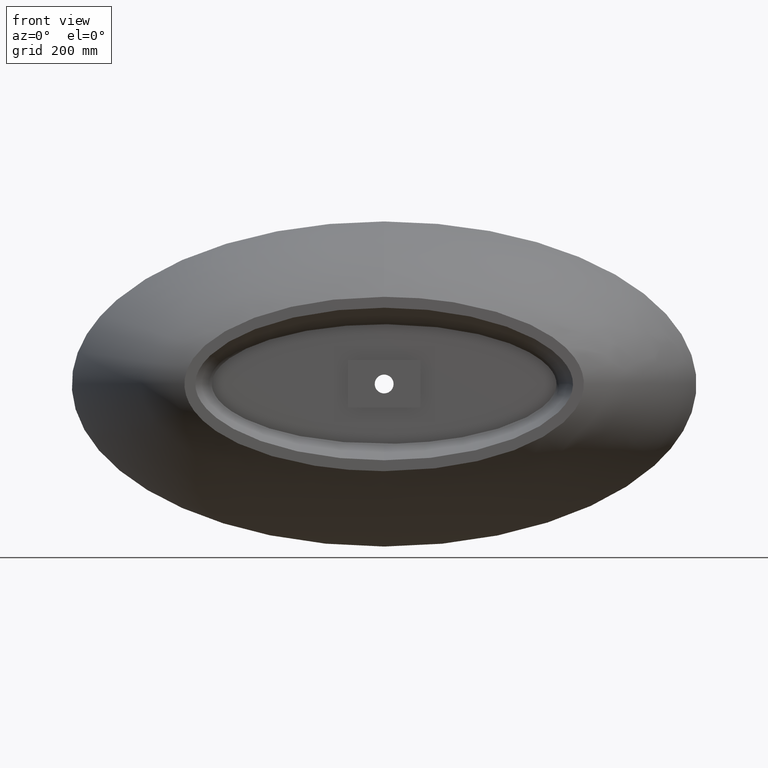
[diagram: clean part render]
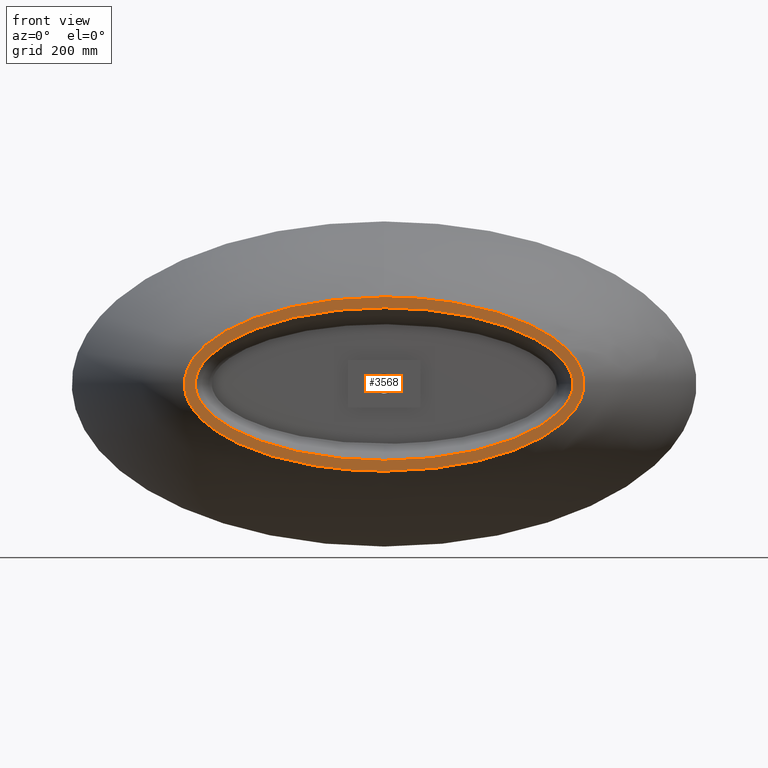
[diagram: same view with one face highlighted and labeled with its STEP entity id]
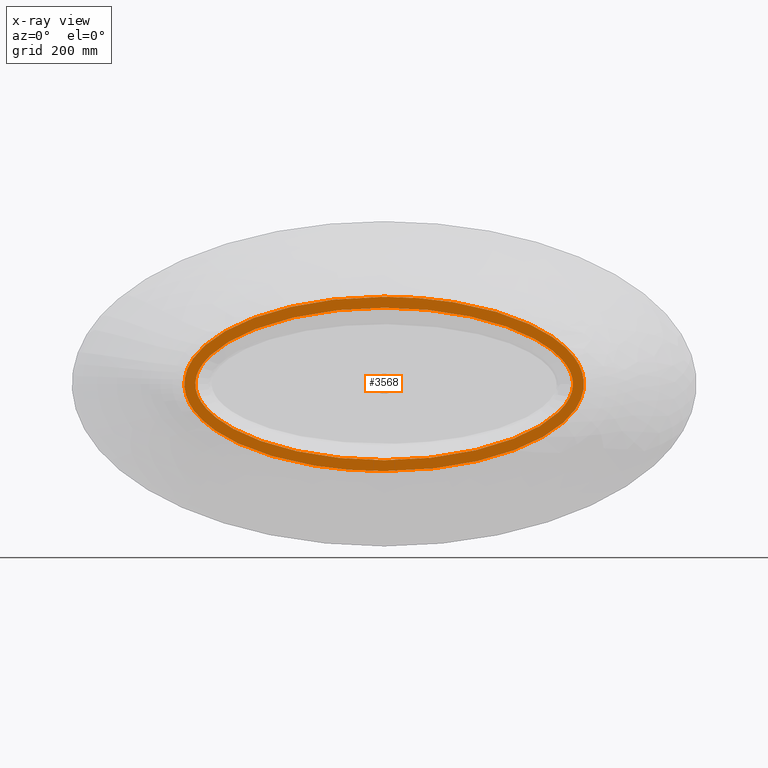
[diagram: x-ray of the same camera — body ghosted, the highlighted face saturated]
A machine part, front view. The second image highlights one B-rep face of the part: STEP entity #3568.
The next image is the same camera in x-ray: the body ghosted, the highlighted face saturated — about 0% of this face is hidden behind the body in this view.
In plain terms, the highlighted planar face has unit normal (-0, -1, 0).
Its self-contained STEP definition (entity closure, byte-faithful):
#64 = CARTESIAN_POINT ( 'NONE',  ( 458.2816326858994103, -549.9999999999995453, 133.3721714630975441 ) ) ;
#74 = CARTESIAN_POINT ( 'NONE',  ( 459.9408592957144037, -549.9999999999994316, 95.59083243352282011 ) ) ;
#284 = CARTESIAN_POINT ( 'NONE',  ( 509.8848025247946225, -549.9999999999969305, 39.74262314227175352 ) ) ;
#287 = B_SPLINE_CURVE_WITH_KNOTS ( 'NONE', 3,
 ( #13985, #3010, #10619, #793, #11759, #1934, #6317, #4162, #8534, #7673, #10969, #10897, #1003, #6528, #1081, #5460, #12047, #9836, #2217, #7599, #14197, #1150, #6602, #14125, #5529, #5389, #9908, #9766, #13116, #4306, #3224, #3293, #11975, #4448, #64, #8676, #6457, #13046, #2142, #4378, #8748, #10829, #10460, #8579 ),
 .UNSPECIFIED., .F., .F.,
 ( 4, 1, 1, 1, 1, 1, 1, 1, 1, 1, 1, 1, 1, 1, 1, 1, 1, 1, 1, 1, 1, 1, 1, 1, 1, 1, 1, 1, 1, 1, 1, 1, 1, 1, 1, 1, 1, 1, 1, 1, 1, 4 ),
 ( 0.5000000000000000000, 0.5156250000017437163, 0.5312500000016874280, 0.5468750000016312507, 0.5781250000015186741, 0.5937500000014624968, 0.6093750000014062085, 0.6250000000013500312, 0.6484375000012656542, 0.6562500000012374546, 0.6718750000011812773, 0.6875000000011249890, 0.6953125000010969003, 0.7031250000010687007, 0.7070312500010547119, 0.7148437500010265122, 0.7187500000010125234, 0.7265625000009843237, 0.7304687500009703349, 0.7343750000009562351, 0.7421875000009281464, 0.7500000000009101608, 0.7519531250008929524, 0.7539062500008859580, 0.7617187500008577583, 0.7656250000008437695, 0.7734375000008155698, 0.7812500000007874812, 0.7851562500007733814, 0.7968750000007311929, 0.8125000000006750156, 0.8203125000006468159, 0.8281250000006188383, 0.8437500000005624390, 0.8593750000005062617, 0.8750000000004500844, 0.9062500000003375078, 0.9218750000002813305, 0.9531250000001687539, 0.9687500000001125766, 0.9937500000000225597, 1.000000000000000000 ),
 .UNSPECIFIED. ) ;
#327 = AXIS2_PLACEMENT_3D ( 'NONE', #1748, #4046, #674 ) ;
#370 = CARTESIAN_POINT ( 'NONE',  ( -542.6870187016096452, -550.0000000000000000, 39.27530119178680934 ) ) ;
#585 = CARTESIAN_POINT ( 'NONE',  ( -43.42624776947792498, -549.9999999999995453, 239.6828792970946722 ) ) ;
#674 = DIRECTION ( 'NONE',  ( 0.01249902348315110219, 0.000000000000000000, 0.9999218841549410985 ) ) ;
#696 = CARTESIAN_POINT ( 'NONE',  ( -519.5850296290756205, -549.9999999999992042, 9.549107308864039467 ) ) ;
#764 = CARTESIAN_POINT ( 'NONE',  ( -483.7870770893066492, -549.9999999999989768, -74.67508547279993536 ) ) ;
#793 = CARTESIAN_POINT ( 'NONE',  ( 107.9300691425968068, -550.0000000000004547, -235.7138171938768494 ) ) ;
#881 = ORIENTED_EDGE ( 'NONE', *, *, #6714, .T. ) ;
#907 = CARTESIAN_POINT ( 'NONE',  ( -517.8656511224545511, -549.9999999999996589, -18.64396103233140067 ) ) ;
#932 = CARTESIAN_POINT ( 'NONE',  ( -547.3592451578685996, -549.9999999999997726, -23.64241492210398121 ) ) ;
#1003 = CARTESIAN_POINT ( 'NONE',  ( 505.1508648147008671, -549.9999999999992042, -95.52551897611658660 ) ) ;
#1081 = CARTESIAN_POINT ( 'NONE',  ( 525.0368487555006141, -549.9999999999997726, -71.69700794961299550 ) ) ;
#1090 = CARTESIAN_POINT ( 'NONE',  ( 37.39272828511787594, -549.9999999999992042, -209.6218115957407520 ) ) ;
#1150 = CARTESIAN_POINT ( 'NONE',  ( 549.5461241487495272, -550.0000000000001137, -11.84255107313511068 ) ) ;
#1159 = CARTESIAN_POINT ( 'NONE',  ( 399.0683064317404387, -550.0000000000002274, -132.4577727200509401 ) ) ;
#1229 = CARTESIAN_POINT ( 'NONE',  ( 364.0616454927691166, -550.0000000000018190, 148.0571270329452034 ) ) ;
#1265 = CARTESIAN_POINT ( 'NONE',  ( -172.6843499985562858, -550.0000000000011369, -198.0555737253382631 ) ) ;
#1445 = CARTESIAN_POINT ( 'NONE',  ( -0.1812131601851615370, -550.0000000000000000, 239.9999999999966178 ) ) ;
#1590 = CARTESIAN_POINT ( 'NONE',  ( -426.0059203567044506, -550.0000000000015916, 152.3977858104817358 ) ) ;
#1728 = CARTESIAN_POINT ( 'NONE',  ( -549.2091747199353904, -549.9999999999997726, 13.81061795507146428 ) ) ;
#1748 = CARTESIAN_POINT ( 'NONE',  ( 6.499999996866696605, -550.0000000000002274, 209.9999995844447085 ) ) ;
#1838 = CARTESIAN_POINT ( 'NONE',  ( -511.2937739351939399, -549.9999999999995453, -36.50208483054849040 ) ) ;
#1907 = CARTESIAN_POINT ( 'NONE',  ( -29.86239837037285838, -549.9999999999995453, 209.8496034169386917 ) ) ;
#1934 = CARTESIAN_POINT ( 'NONE',  ( 243.9221858666340665, -550.0000000000021600, -216.1191879179154682 ) ) ;
#1979 = CARTESIAN_POINT ( 'NONE',  ( -329.7423837641039199, -550.0000000000013642, -160.8065528081098137 ) ) ;
#2005 = CARTESIAN_POINT ( 'NONE',  ( -542.6870186007453185, -550.0000000000001137, -39.27530118451109331 ) ) ;
#2073 = CARTESIAN_POINT ( 'NONE',  ( -545.3507166736654881, -549.9999999999997726, -31.48053266987331611 ) ) ;
#2142 = CARTESIAN_POINT ( 'NONE',  ( 243.9220497798448264, -550.0000000000000000, 216.1191799894340306 ) ) ;
#2217 = CARTESIAN_POINT ( 'NONE',  ( 543.4075405844944271, -549.9999999999995453, -37.33022149251093680 ) ) ;
#2226 = CARTESIAN_POINT ( 'NONE',  ( 0.7607690936900306511, -550.0000000000001137, 210.0000011831789664 ) ) ;
#2294 = CARTESIAN_POINT ( 'NONE',  ( 300.1324084329261268, -549.9999999999948841, -170.3609122437607937 ) ) ;
#2363 = CARTESIAN_POINT ( 'NONE',  ( 500.0957018220941563, -550.0000000000013642, -55.21487317176226384 ) ) ;
#2436 = CARTESIAN_POINT ( 'NONE',  ( 67.06208630933899428, -550.0000000000011369, 208.4926638322117469 ) ) ;
#2506 = CARTESIAN_POINT ( 'NONE',  ( 491.6598373307728593, -549.9999999999973852, 65.67386279040510999 ) ) ;
#2801 = CARTESIAN_POINT ( 'NONE',  ( -538.5523376049411581, -550.0000000000004547, 48.94157666740932200 ) ) ;
#2868 = CARTESIAN_POINT ( 'NONE',  ( -426.0059269590763051, -549.9999999999990905, -152.3977861949017552 ) ) ;
#2917 = CARTESIAN_POINT ( 'NONE',  ( -520.2017854197547422, -549.9999999999977263, -0.04128813465277873102 ) ) ;
#2942 = CARTESIAN_POINT ( 'NONE',  ( -548.5352760268924612, -550.0000000000000000, -17.74675172000313239 ) ) ;
#3010 = CARTESIAN_POINT ( 'NONE',  ( 18.09289023372610217, -550.0000000000002274, -239.9999156886129583 ) ) ;
#3032 = PLANE ( 'NONE',  #327 ) ;
#3054 = CARTESIAN_POINT ( 'NONE',  ( -233.4483632021364770, -549.9999999999992042, 187.2246256979250916 ) ) ;
#3084 = CARTESIAN_POINT ( 'NONE',  ( -536.8984650912691450, -550.0000000000003411, -52.80808685010353543 ) ) ;
#3200 = CARTESIAN_POINT ( 'NONE',  ( -62.06092952749893499, -549.9999999999972715, -208.8742597389737341 ) ) ;
#3224 = CARTESIAN_POINT ( 'NONE',  ( 525.5545697278693069, -549.9999999999980673, 71.77923843595678477 ) ) ;
#3234 = CARTESIAN_POINT ( 'NONE',  ( -0.004164325411291938846, -550.0000000000000000, -210.0003838655202628 ) ) ;
#3293 = CARTESIAN_POINT ( 'NONE',  ( 511.9902311193207538, -549.9999999999994316, 88.32042125624580819 ) ) ;
#3302 = CARTESIAN_POINT ( 'NONE',  ( 518.4013824352646225, -549.9999999999995453, -18.73833923980136262 ) ) ;
#3373 = CARTESIAN_POINT ( 'NONE',  ( 516.2247619875673763, -550.0000000000023874, 25.04369887019126750 ) ) ;
#3409 = CARTESIAN_POINT ( 'NONE',  ( -123.6754900008494644, -550.0000000000021600, -204.1601253492840726 ) ) ;
#3512 = CARTESIAN_POINT ( 'NONE',  ( 258.1129516649361335, -550.0000000000052296, -181.3700776723694332 ) ) ;
#3568 = ADVANCED_FACE ( 'NONE', ( #5130, #8489 ), #3032, .T. ) ;
#3585 = CARTESIAN_POINT ( 'NONE',  ( 281.2095532942316822, -549.9999999999978400, 175.9186672155845770 ) ) ;
#3592 = CARTESIAN_POINT ( 'NONE',  ( -321.0759676734047048, -549.9999999999995453, 195.9417663310658781 ) ) ;
#3733 = CARTESIAN_POINT ( 'NONE',  ( -243.9220497782478674, -550.0000000000018190, 216.1191799897659678 ) ) ;
#3877 = CARTESIAN_POINT ( 'NONE',  ( -521.2358162378365023, -549.9999999999994316, 77.32960080853607110 ) ) ;
#3995 = CARTESIAN_POINT ( 'NONE',  ( -392.9008440387780752, -550.0000000000010232, 135.2275981157539775 ) ) ;
#4046 = DIRECTION ( 'NONE',  ( -2.901668462610922871E-14, -1.000000000000000000, 3.627085558302775275E-16 ) ) ;
#4067 = CARTESIAN_POINT ( 'NONE',  ( -469.9094558180062222, -550.0000000000036380, -87.21953454294505548 ) ) ;
#4162 = CARTESIAN_POINT ( 'NONE',  ( 349.2444678731999943, -550.0000000000023874, -185.8936578830450230 ) ) ;
#4205 = B_SPLINE_CURVE_WITH_KNOTS ( 'NONE', 3,
 ( #1445, #10414, #585, #4821, #5891, #3733, #3592, #4966, #1590, #7963, #13705, #9334, #5820, #3877, #10204, #2801, #370, #12632, #12340, #1728, #6107, #9119, #4747, #12701, #2942, #932, #2073, #2005, #3084, #8467, #10482, #9548, #5249, #7319, #5035, #2868, #12907, #11689, #9478, #6387, #5180, #7250, #7533 ),
 .UNSPECIFIED., .F., .F.,
 ( 4, 1, 1, 1, 1, 1, 1, 1, 1, 1, 1, 1, 1, 1, 1, 1, 1, 1, 1, 1, 1, 1, 1, 1, 1, 1, 1, 1, 1, 1, 1, 1, 1, 1, 1, 1, 1, 1, 1, 1, 4 ),
 ( 0.000000000000000000, 0.006250000000022588181, 0.03125000000011250029, 0.04687500000016874696, 0.07812500000028124725, 0.09375000000033749392, 0.1250000000004500011, 0.1406250000005062339, 0.1562500000005624945, 0.1718750000006187273, 0.1796875000006468437, 0.1875000000006749878, 0.1953125000007031042, 0.2109375000007593648, 0.2187500000007874812, 0.2226562500008015533, 0.2304687500008296697, 0.2343750000008437140, 0.2421875000008718581, 0.2460937500008859025, 0.2500000000014851453, 0.2539062500009140466, 0.2578125000009280909, 0.2617187500009421353, 0.2656250000009562351, 0.2695312500009702794, 0.2773437500009984236, 0.2812500000010124679, 0.2968750000010687007, 0.3007812500010828005, 0.3046875000010968448, 0.3125000000011249890, 0.3281250000011812218, 0.3437500000012374546, 0.3593750000012936874, 0.3750000000013499757, 0.4062500000014624413, 0.4218750000015187296, 0.4531250000016311952, 0.4687500000016874280, 0.5000000000000000000 ),
 .UNSPECIFIED. ) ;
#4206 = CARTESIAN_POINT ( 'NONE',  ( -67.02310869536415794, -549.9999999999985221, 208.4947862541976349 ) ) ;
#4246 = CARTESIAN_POINT ( 'NONE',  ( 74.64916214519288928, -550.0000000000005684, -207.9163013942036287 ) ) ;
#4306 = CARTESIAN_POINT ( 'NONE',  ( 534.7125214547298810, -550.0000000000009095, 56.61547405139113920 ) ) ;
#4378 = CARTESIAN_POINT ( 'NONE',  ( 177.7312770646930460, -550.0000000000012506, 228.0828851300970257 ) ) ;
#4387 = CARTESIAN_POINT ( 'NONE',  ( 436.7879336821675906, -550.0000000000002274, 111.3048257321553081 ) ) ;
#4448 = CARTESIAN_POINT ( 'NONE',  ( 481.4015418716684849, -550.0000000000005684, 116.5386250253265956 ) ) ;
#4457 = CARTESIAN_POINT ( 'NONE',  ( 328.6838751360041897, -549.9999999999989768, 161.1662752285589875 ) ) ;
#4664 = CARTESIAN_POINT ( 'NONE',  ( 426.3888544127157729, -550.0000000000000000, -117.6343091166865946 ) ) ;
#4747 = CARTESIAN_POINT ( 'NONE',  ( -549.8863654558073222, -550.0000000000005684, -5.921275534574956367 ) ) ;
#4821 = CARTESIAN_POINT ( 'NONE',  ( -97.46056479388047933, -549.9999999999984084, 236.8584979603732279 ) ) ;
#4966 = CARTESIAN_POINT ( 'NONE',  ( -377.3985119890826923, -549.9999999999989768, 175.8480075385709540 ) ) ;
#5035 = CARTESIAN_POINT ( 'NONE',  ( -458.2816294629574827, -550.0000000000005684, -133.3721712757558748 ) ) ;
#5086 = CARTESIAN_POINT ( 'NONE',  ( -452.4554612386209556, -549.9999999999964757, 100.8514110428042443 ) ) ;
#5130 = FACE_BOUND ( 'NONE', #12994, .T. ) ;
#5180 = CARTESIAN_POINT ( 'NONE',  ( -90.47961798647628484, -549.9999999999996589, -237.6215413619488004 ) ) ;
#5225 = CARTESIAN_POINT ( 'NONE',  ( -0.1812131601851615370, -550.0000000000000000, 239.9999999999966178 ) ) ;
#5249 = CARTESIAN_POINT ( 'NONE',  ( -505.1508648142729498, -550.0000000000006821, -95.52551897657124869 ) ) ;
#5389 = CARTESIAN_POINT ( 'NONE',  ( 548.9272862575321597, -549.9999999999994316, 15.78153065055279392 ) ) ;
#5460 = CARTESIAN_POINT ( 'NONE',  ( 531.2782897190446647, -550.0000000000002274, -62.30188570480135724 ) ) ;
#5529 = CARTESIAN_POINT ( 'NONE',  ( 549.7168620017062040, -550.0000000000003411, 8.880846124231592142 ) ) ;
#5607 = CARTESIAN_POINT ( 'NONE',  ( 172.5813380315756547, -549.9999999999970441, 198.0672690913178542 ) ) ;
#5743 = CARTESIAN_POINT ( 'NONE',  ( 481.4281569729997727, -549.9999999999977263, -76.45597951671742010 ) ) ;
#5820 = CARTESIAN_POINT ( 'NONE',  ( -508.3678555082830144, -549.9999999999998863, 91.88633536821632219 ) ) ;
#5891 = CARTESIAN_POINT ( 'NONE',  ( -177.7312770634526657, -550.0000000000025011, 228.0828851302667601 ) ) ;
#6107 = CARTESIAN_POINT ( 'NONE',  ( -549.8863654279665525, -550.0000000000002274, 5.921275538163368601 ) ) ;
#6151 = CARTESIAN_POINT ( 'NONE',  ( -498.0079854846404714, -549.9999999999978400, 57.96144464028889587 ) ) ;
#6216 = CARTESIAN_POINT ( 'NONE',  ( -505.3222340829642576, -550.0000000000004547, -47.56991417472683281 ) ) ;
#6289 = CARTESIAN_POINT ( 'NONE',  ( -364.5293392142237963, -549.9999999999984084, 147.8592490652453364 ) ) ;
#6317 = CARTESIAN_POINT ( 'NONE',  ( 305.6451385967395709, -549.9999999999980673, -199.9772464106817722 ) ) ;
#6334 = VERTEX_POINT ( 'NONE', #11548 ) ;
#6387 = CARTESIAN_POINT ( 'NONE',  ( -177.7318737003438684, -550.0000000000007958, -228.0829205276060918 ) ) ;
#6404 = ORIENTED_EDGE ( 'NONE', *, *, #7901, .T. ) ;
#6431 = CARTESIAN_POINT ( 'NONE',  ( -233.5259433285955879, -549.9999999999981810, -187.2094869532226369 ) ) ;
#6457 = CARTESIAN_POINT ( 'NONE',  ( 377.3985119910333310, -550.0000000000005684, 175.8480075377845537 ) ) ;
#6528 = CARTESIAN_POINT ( 'NONE',  ( 518.0188258025762025, -549.9999999999993179, -80.96878443248142787 ) ) ;
#6602 = CARTESIAN_POINT ( 'NONE',  ( 550.0564861092560704, -550.0000000000009095, -2.960637766674719007 ) ) ;
#6611 = CARTESIAN_POINT ( 'NONE',  ( 520.2072571978527549, -550.0000000000014779, -4.819714324237535763 ) ) ;
#6714 = EDGE_CURVE ( 'NONE', #8325, #6334, #4205, .T. ) ;
#6817 = CARTESIAN_POINT ( 'NONE',  ( 519.8963606689079597, -549.9999999999992042, 4.808343468995973424 ) ) ;
#6888 = CARTESIAN_POINT ( 'NONE',  ( 512.8039311457465601, -549.9999999999988631, -33.69820074324517378 ) ) ;
#7250 = CARTESIAN_POINT ( 'NONE',  ( -36.18957215933185267, -550.0000000000013642, -239.9992426788003286 ) ) ;
#7295 = CARTESIAN_POINT ( 'NONE',  ( -519.5943968856109905, -549.9999999999990905, -9.439067291093101275 ) ) ;
#7319 = CARTESIAN_POINT ( 'NONE',  ( -486.0255255494410562, -549.9999999999995453, -113.1719158456662484 ) ) ;
#7364 = CARTESIAN_POINT ( 'NONE',  ( -426.2023849048700299, -549.9999999999976126, -117.7433043384354363 ) ) ;
#7435 = CARTESIAN_POINT ( 'NONE',  ( -517.2373067992277811, -550.0000000000009095, 21.88878751120215682 ) ) ;
#7504 = CARTESIAN_POINT ( 'NONE',  ( -281.6878218045079052, -549.9999999999992042, 175.8028244362717487 ) ) ;
#7533 = CARTESIAN_POINT ( 'NONE',  ( -0.001263897293213930503, -550.0000000000005684, -239.9996913520087389 ) ) ;
#7599 = CARTESIAN_POINT ( 'NONE',  ( 545.8528487945258121, -549.9999999999994316, -29.52100323360043888 ) ) ;
#7611 = CARTESIAN_POINT ( 'NONE',  ( 0.7607690936900306511, -550.0000000000001137, 210.0000011831789664 ) ) ;
#7673 = CARTESIAN_POINT ( 'NONE',  ( 431.7628612472130385, -550.0000000000004547, -149.3247370827652674 ) ) ;
#7817 = CARTESIAN_POINT ( 'NONE',  ( 492.1549741461279837, -550.0000000000032969, -65.10431297074481449 ) ) ;
#7883 = CARTESIAN_POINT ( 'NONE',  ( 233.1693452773158697, -550.0000000000031832, 187.2787288606803031 ) ) ;
#7901 = EDGE_CURVE ( 'NONE', #6334, #8325, #287, .T. ) ;
#7963 = CARTESIAN_POINT ( 'NONE',  ( -458.2816326842278158, -549.9999999999978400, 133.3721714641852998 ) ) ;
#8316 = CARTESIAN_POINT ( 'NONE',  ( -0.004164325411291938846, -550.0000000000000000, -210.0003838655202628 ) ) ;
#8325 = VERTEX_POINT ( 'NONE', #5225 ) ;
#8372 = CARTESIAN_POINT ( 'NONE',  ( -415.0248108956008650, -549.9999999999988631, 123.7922861181952641 ) ) ;
#8399 = EDGE_CURVE ( 'NONE', #14003, #12397, #9031, .T. ) ;
#8404 = ORIENTED_EDGE ( 'NONE', *, *, #9193, .F. ) ;
#8439 = CARTESIAN_POINT ( 'NONE',  ( -454.9590519511479556, -549.9999999999992042, -98.56207872269736470 ) ) ;
#8467 = CARTESIAN_POINT ( 'NONE',  ( -530.3406343221884072, -549.9999999999997726, -64.23024845840357955 ) ) ;
#8489 = FACE_OUTER_BOUND ( 'NONE', #13901, .T. ) ;
#8510 = CARTESIAN_POINT ( 'NONE',  ( -123.7004199270438392, -550.0000000000014779, 204.1576979972476238 ) ) ;
#8534 = CARTESIAN_POINT ( 'NONE',  ( 396.2679986943757058, -549.9999999999974989, -167.3340836153437010 ) ) ;
#8579 = CARTESIAN_POINT ( 'NONE',  ( -0.1812131601851615370, -550.0000000000000000, 239.9999999999966178 ) ) ;
#8676 = CARTESIAN_POINT ( 'NONE',  ( 426.0059203585331602, -549.9999999999998863, 152.3977858095075533 ) ) ;
#8748 = CARTESIAN_POINT ( 'NONE',  ( 97.46056479459748800, -549.9999999999981810, 236.8584979603258773 ) ) ;
#8757 = CARTESIAN_POINT ( 'NONE',  ( 506.8750652418714253, -550.0000000000004547, -44.69245768987997991 ) ) ;
#8828 = CARTESIAN_POINT ( 'NONE',  ( 460.1582242861580312, -550.0000000000010232, -94.75472356292434029 ) ) ;
#9031 = B_SPLINE_CURVE_WITH_KNOTS ( 'NONE', 3,
 ( #9382, #11593, #1907, #4206, #8510, #9523, #3054, #7504, #12677, #6289, #3995, #8372, #13821, #5086, #12883, #12747, #6151, #13889, #10527, #7435, #696, #2917, #7295, #907, #11663, #1838, #6216, #10594, #764, #4067, #8439, #10664, #7364, #11733, #11806, #1979, #10734, #6431, #1265, #3409, #3200, #9952, #12156 ),
 .UNSPECIFIED., .F., .F.,
 ( 4, 1, 1, 1, 1, 1, 1, 1, 1, 1, 1, 1, 1, 1, 1, 1, 1, 1, 1, 1, 1, 1, 1, 1, 1, 1, 1, 1, 1, 1, 1, 1, 1, 1, 1, 1, 1, 1, 1, 1, 4 ),
 ( 0.000000000000000000, 0.006250000000022668846, 0.03125000000011290274, 0.04687500000016935064, 0.07812500000028224645, 0.09375000000033870129, 0.1250000000004516110, 0.1406250000005080381, 0.1562500000005644929, 0.1718750000006209477, 0.1796875000006491474, 0.1875000000006774026, 0.1953125000007056300, 0.2109375000007620848, 0.2187500000007903123, 0.2226562500008044121, 0.2304687500008326395, 0.2343750000008467393, 0.2421875000008749668, 0.2460937500008890666, 0.2500000000014883650, 0.2539062500009173218, 0.2578125000009314216, 0.2617187500009455214, 0.2656250000009596768, 0.2695312500009737766, 0.2773437500010019763, 0.2812500000010160761, 0.2968750000010725310, 0.3007812500010866863, 0.3046875000011007861, 0.3125000000011289858, 0.3281250000011854406, 0.3437500000012418955, 0.3593750000012982948, 0.3750000000013548052, 0.4062500000014676593, 0.4218750000015241697, 0.4531250000016370238, 0.4687500000016934787, 0.5000000000000064393 ),
 .UNSPECIFIED. ) ;
#9119 = CARTESIAN_POINT ( 'NONE',  ( -550.0564861023246976, -550.0000000000006821, 2.454823670727801499E-09 ) ) ;
#9193 = EDGE_CURVE ( 'NONE', #12397, #14003, #9650, .T. ) ;
#9334 = CARTESIAN_POINT ( 'NONE',  ( -497.5007286784938287, -550.0000000000007958, 102.5840777004593605 ) ) ;
#9382 = CARTESIAN_POINT ( 'NONE',  ( 0.7607690936900306511, -550.0000000000001137, 210.0000011831789664 ) ) ;
#9478 = CARTESIAN_POINT ( 'NONE',  ( -243.9221858578647186, -550.0000000000021600, -216.1191879198418917 ) ) ;
#9523 = CARTESIAN_POINT ( 'NONE',  ( -172.6709316319689549, -550.0000000000017053, 198.0565024083772983 ) ) ;
#9548 = CARTESIAN_POINT ( 'NONE',  ( -516.4103306789220369, -550.0000000000004547, -82.78837625064271322 ) ) ;
#9650 = B_SPLINE_CURVE_WITH_KNOTS ( 'NONE', 3,
 ( #3234, #9703, #1090, #4246, #11984, #12987, #9846, #3512, #2294, #10197, #10125, #1159, #4664, #13126, #8828, #13199, #5743, #7817, #2363, #8757, #6888, #3302, #6611, #6817, #11047, #3373, #284, #13268, #2506, #12056, #74, #4387, #10055, #12333, #1229, #4457, #3585, #7883, #5607, #13335, #2436, #11259, #11118, #2226 ),
 .UNSPECIFIED., .F., .F.,
 ( 4, 1, 1, 1, 1, 1, 1, 1, 1, 1, 1, 1, 1, 1, 1, 1, 1, 1, 1, 1, 1, 1, 1, 1, 1, 1, 1, 1, 1, 1, 1, 1, 1, 1, 1, 1, 1, 1, 1, 1, 1, 4 ),
 ( 0.5000000000000064393, 0.5156250000017499335, 0.5312500000016935342, 0.5468750000016370238, 0.5781250000015241142, 0.5937500000014677148, 0.6093750000014112045, 0.6250000000013548052, 0.6484375000012700951, 0.6562500000012418955, 0.6718750000011854961, 0.6875000000011289858, 0.6953125000011007861, 0.7031250000010725865, 0.7070312500010584866, 0.7148437500010302870, 0.7187500000010160761, 0.7265625000009878764, 0.7304687500009737766, 0.7343750000009596768, 0.7421875000009314771, 0.7500000000009132695, 0.7519531250008961720, 0.7539062500008890666, 0.7617187500008608669, 0.7656250000008467671, 0.7734375000008185674, 0.7812500000007902567, 0.7851562500007762679, 0.7968750000007338574, 0.8125000000006774581, 0.8203125000006492584, 0.8281250000006210588, 0.8437500000005644374, 0.8593750000005080381, 0.8750000000004516387, 0.9062500000003387290, 0.9218750000002822187, 0.9531250000001694200, 0.9687500000001129097, 0.9937500000000225597, 1.000000000000000000 ),
 .UNSPECIFIED. ) ;
#9703 = CARTESIAN_POINT ( 'NONE',  ( 12.44208160557806231, -550.0000000000000000, -209.9996986738922544 ) ) ;
#9766 = CARTESIAN_POINT ( 'NONE',  ( 544.1812697586077547, -550.0000000000004547, 35.39105410178704147 ) ) ;
#9836 = CARTESIAN_POINT ( 'NONE',  ( 540.3126241853074134, -550.0000000000003411, -45.08689106769563182 ) ) ;
#9846 = CARTESIAN_POINT ( 'NONE',  ( 221.8196737927736990, -549.9999999999976126, -189.2875894099884988 ) ) ;
#9908 = CARTESIAN_POINT ( 'NONE',  ( 546.9672348381091069, -549.9999999999990905, 25.60763598634907723 ) ) ;
#9952 = CARTESIAN_POINT ( 'NONE',  ( -24.89665618735922692, -550.0000000000000000, -210.0017542487762512 ) ) ;
#10055 = CARTESIAN_POINT ( 'NONE',  ( 414.9914164813812363, -549.9999999999995453, 123.8143667043447920 ) ) ;
#10125 = CARTESIAN_POINT ( 'NONE',  ( 370.6970230922043470, -550.0000000000022737, -145.1248576601156230 ) ) ;
#10197 = CARTESIAN_POINT ( 'NONE',  ( 335.9351409535395874, -549.9999999999972715, -158.7141456705421376 ) ) ;
#10204 = CARTESIAN_POINT ( 'NONE',  ( -531.6464343951530509, -550.0000000000002274, 62.35020404315481102 ) ) ;
#10414 = CARTESIAN_POINT ( 'NONE',  ( -7.237426320367744026, -549.9999999999998863, 240.0000000000001137 ) ) ;
#10460 = CARTESIAN_POINT ( 'NONE',  ( 6.874999999997317701, -550.0000000000002274, 239.9999999999928946 ) ) ;
#10482 = CARTESIAN_POINT ( 'NONE',  ( -522.2296395742800996, -550.0000000000002274, -75.40571854282818265 ) ) ;
#10527 = CARTESIAN_POINT ( 'NONE',  ( -512.7262407189728037, -549.9999999999998863, 33.87751203764115360 ) ) ;
#10594 = CARTESIAN_POINT ( 'NONE',  ( -497.9657336285170572, -550.0000000000004547, -58.01287269775674815 ) ) ;
#10619 = CARTESIAN_POINT ( 'NONE',  ( 54.27867068440372833, -549.9999999999987494, -239.2080215928139353 ) ) ;
#10664 = CARTESIAN_POINT ( 'NONE',  ( -444.6733839350175685, -550.0000000000014779, -105.8523481311090535 ) ) ;
#10734 = CARTESIAN_POINT ( 'NONE',  ( -281.8177060704628616, -549.9999999999971578, -175.7702322800955699 ) ) ;
#10829 = CARTESIAN_POINT ( 'NONE',  ( 41.24999999998001954, -550.0000000000002274, 239.6249999999583906 ) ) ;
#10897 = CARTESIAN_POINT ( 'NONE',  ( 486.0255255503925582, -550.0000000000015916, -113.1719158448545102 ) ) ;
#10969 = CARTESIAN_POINT ( 'NONE',  ( 462.9056121457152244, -549.9999999999992042, -130.0054620362536184 ) ) ;
#11047 = CARTESIAN_POINT ( 'NONE',  ( 518.9758503683809749, -550.0000000000029559, 14.35439703772358300 ) ) ;
#11118 = CARTESIAN_POINT ( 'NONE',  ( 6.499999996866703711, -550.0000000000003411, 209.9999995844448222 ) ) ;
#11259 = CARTESIAN_POINT ( 'NONE',  ( 38.99999998119663047, -550.0000000000004547, 209.6718745850639607 ) ) ;
#11548 = CARTESIAN_POINT ( 'NONE',  ( -0.001263897293213930503, -550.0000000000005684, -239.9996913520087389 ) ) ;
#11593 = CARTESIAN_POINT ( 'NONE',  ( -4.978461809486745437, -549.9999999999998863, 210.0000027819131105 ) ) ;
#11663 = CARTESIAN_POINT ( 'NONE',  ( -515.0379698389452869, -550.0000000000009095, -27.76615716410828938 ) ) ;
#11689 = CARTESIAN_POINT ( 'NONE',  ( -321.0758767727516556, -549.9999999999984084, -195.9417610359519131 ) ) ;
#11733 = CARTESIAN_POINT ( 'NONE',  ( -398.8387722680801630, -549.9999999999990905, -132.5701618966881767 ) ) ;
#11759 = CARTESIAN_POINT ( 'NONE',  ( 177.7318737107844129, -549.9999999999998863, -228.0829205260334049 ) ) ;
#11806 = CARTESIAN_POINT ( 'NONE',  ( -364.7856510930201921, -550.0000000000028422, -147.7563521012326646 ) ) ;
#11975 = CARTESIAN_POINT ( 'NONE',  ( 497.5007286797883808, -550.0000000000001137, 102.5840776992634460 ) ) ;
#11984 = CARTESIAN_POINT ( 'NONE',  ( 124.0827622239607990, -549.9999999999992042, -204.1206199374681205 ) ) ;
#12047 = CARTESIAN_POINT ( 'NONE',  ( 535.6458719487336566, -550.0000000000005684, -54.69404355556349628 ) ) ;
#12056 = CARTESIAN_POINT ( 'NONE',  ( 478.7001487523812102, -550.0000000000027285, 79.27590067954790243 ) ) ;
#12156 = CARTESIAN_POINT ( 'NONE',  ( -0.004164325411291938846, -550.0000000000000000, -210.0003838655202628 ) ) ;
#12333 = CARTESIAN_POINT ( 'NONE',  ( 392.6727471866155952, -550.0000000000022737, 135.3399518915927331 ) ) ;
#12340 = CARTESIAN_POINT ( 'NONE',  ( -547.8613772269945912, -549.9999999999994316, 21.68288548251210202 ) ) ;
#12397 = VERTEX_POINT ( 'NONE', #8316 ) ;
#12574 = ORIENTED_EDGE ( 'NONE', *, *, #8399, .F. ) ;
#12632 = CARTESIAN_POINT ( 'NONE',  ( -545.3507167007338694, -549.9999999999995453, 31.48053267144736012 ) ) ;
#12677 = CARTESIAN_POINT ( 'NONE',  ( -329.5307081553520447, -549.9999999999965894, 160.8778807294197293 ) ) ;
#12701 = CARTESIAN_POINT ( 'NONE',  ( -549.3784724451010106, -550.0000000000003411, -11.83828234977719873 ) ) ;
#12747 = CARTESIAN_POINT ( 'NONE',  ( -487.7501698304011484, -550.0000000000015916, 70.01685100171408749 ) ) ;
#12883 = CARTESIAN_POINT ( 'NONE',  ( -472.2498329119354707, -549.9999999999976126, 85.50637530782080376 ) ) ;
#12907 = CARTESIAN_POINT ( 'NONE',  ( -377.3984929203522256, -550.0000000000012506, -175.8480064279917201 ) ) ;
#12987 = CARTESIAN_POINT ( 'NONE',  ( 173.1597127694045071, -550.0000000000025011, -197.9850968487711782 ) ) ;
#12994 = EDGE_LOOP ( 'NONE', ( #12574, #8404 ) ) ;
#13046 = CARTESIAN_POINT ( 'NONE',  ( 321.0759676752956580, -550.0000000000000000, 195.9417663304878090 ) ) ;
#13116 = CARTESIAN_POINT ( 'NONE',  ( 540.3126242988390686, -550.0000000000017053, 45.08689107502765836 ) ) ;
#13126 = CARTESIAN_POINT ( 'NONE',  ( 447.4784846781843157, -549.9999999999995453, -104.0388958137139781 ) ) ;
#13199 = CARTESIAN_POINT ( 'NONE',  ( 472.2276801212634609, -549.9999999999982947, -84.89799376200041081 ) ) ;
#13268 = CARTESIAN_POINT ( 'NONE',  ( 501.7323428540536838, -549.9999999999980673, 53.25021923196056406 ) ) ;
#13335 = CARTESIAN_POINT ( 'NONE',  ( 123.7055685160378147, -549.9999999999981810, 204.1562970264436103 ) ) ;
#13705 = CARTESIAN_POINT ( 'NONE',  ( -481.4015418701984572, -550.0000000000013642, 116.5386250264840697 ) ) ;
#13821 = CARTESIAN_POINT ( 'NONE',  ( -431.2596725328787102, -550.0000000000019327, 114.4814857595720241 ) ) ;
#13889 = CARTESIAN_POINT ( 'NONE',  ( -505.2555402451374107, -549.9999999999995453, 47.66256245808881431 ) ) ;
#13901 = EDGE_LOOP ( 'NONE', ( #881, #6404 ) ) ;
#13985 = CARTESIAN_POINT ( 'NONE',  ( -0.001263897293213930503, -550.0000000000005684, -239.9996913520087389 ) ) ;
#14003 = VERTEX_POINT ( 'NONE', #7611 ) ;
#14125 = CARTESIAN_POINT ( 'NONE',  ( 549.9714257651725120, -550.0000000000007958, 2.960637769320753954 ) ) ;
#14197 = CARTESIAN_POINT ( 'NONE',  ( 547.8613772787582548, -549.9999999999994316, -21.68288548592762410 ) ) ;